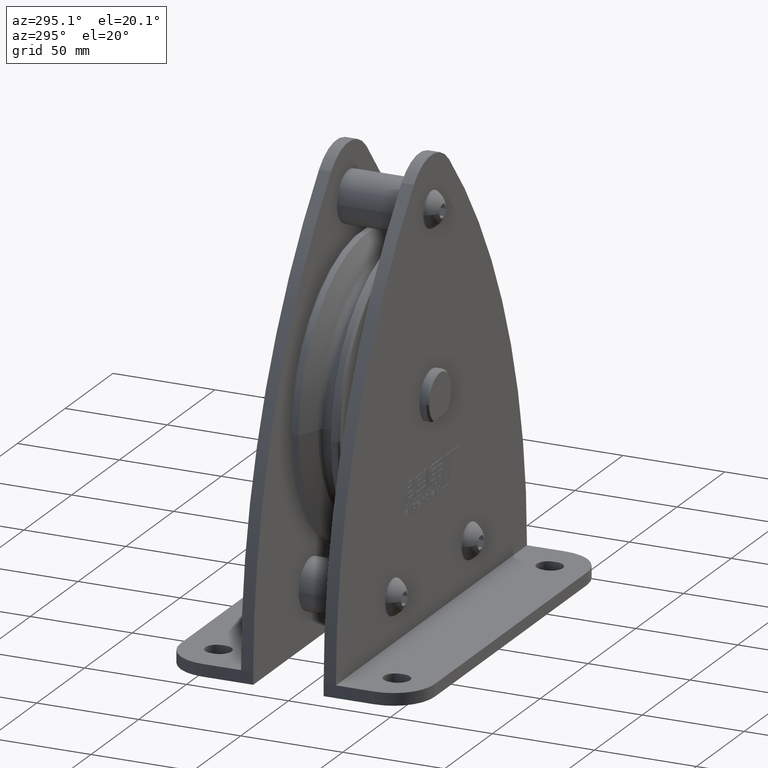
[diagram: clean part render]
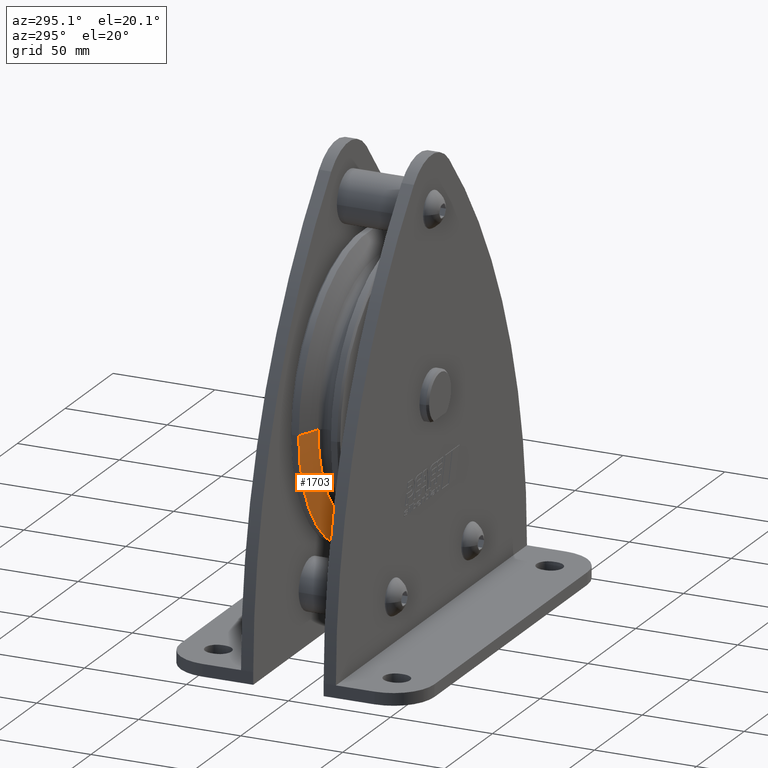
[diagram: same view with one face highlighted and labeled with its STEP entity id]
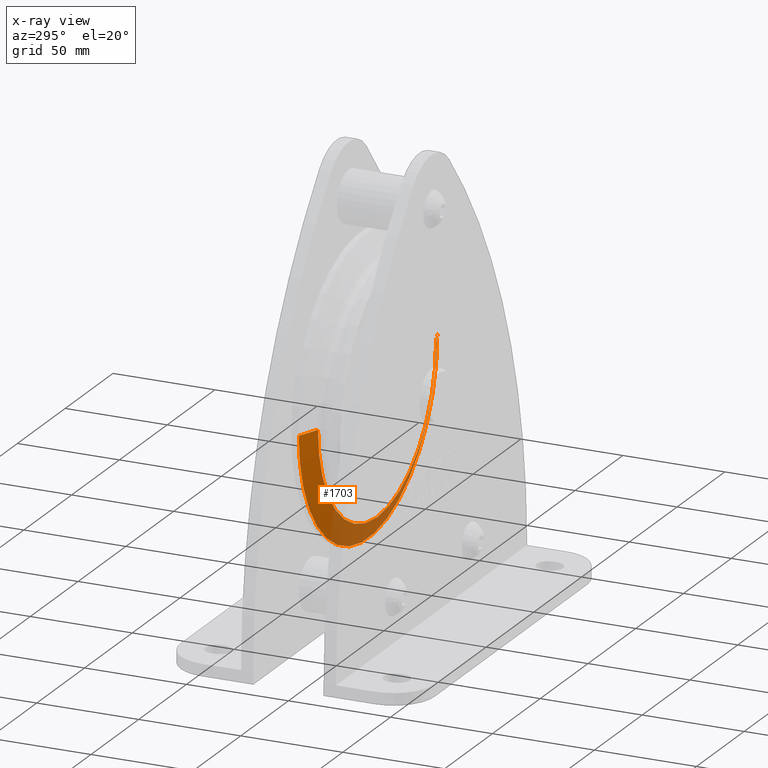
[diagram: x-ray of the same camera — body ghosted, the highlighted face saturated]
A machine part, auxiliary view. The second image highlights one B-rep face of the part: STEP entity #1703.
The next image is the same camera in x-ray: the body ghosted, the highlighted face saturated — about 41% of this face is hidden behind the body in this view.
In plain terms, the highlighted conical surface has half-angle 67.5 deg.
Its self-contained STEP definition (entity closure, byte-faithful):
#1703=ADVANCED_FACE('',(#3615),#3616,.T.);
#3615=FACE_OUTER_BOUND('',#5721,.T.);
#3616=CONICAL_SURFACE('',#5722,67.1420355,1.17809721524448);
#5721=EDGE_LOOP('',(#11158,#11159,#11160,#11161));
#5722=AXIS2_PLACEMENT_3D('',#11162,#11163,#11164);
#11158=ORIENTED_EDGE('',*,*,#12722,.T.);
#11159=ORIENTED_EDGE('',*,*,#12719,.F.);
#11160=ORIENTED_EDGE('',*,*,#12724,.T.);
#11161=ORIENTED_EDGE('',*,*,#14550,.T.);
#11162=CARTESIAN_POINT('',(0.0,5.63769575,0.0));
#11163=DIRECTION('',(-0.0,1.0,-0.0));
#11164=DIRECTION('',(1.0,0.0,0.0));
#12719=EDGE_CURVE('',#15328,#15330,#15331,.T.);
#12722=EDGE_CURVE('',#15334,#15330,#15335,.T.);
#12724=EDGE_CURVE('',#15328,#15336,#15338,.T.);
#14550=EDGE_CURVE('',#15336,#15334,#18042,.T.);
#15328=VERTEX_POINT('',#19782);
#15330=VERTEX_POINT('',#19784);
#15331=CIRCLE('',#19785,61.784071);
#15334=VERTEX_POINT('',#19788);
#15335=LINE('',#19789,#19790);
#15336=VERTEX_POINT('',#19791);
#15338=LINE('',#19793,#19794);
#18042=CIRCLE('',#25732,72.5);
#19782=CARTESIAN_POINT('',(-61.784071,3.418354,7.56636647884428E-015));
#19784=CARTESIAN_POINT('',(61.784071,3.418354,0.0));
#19785=AXIS2_PLACEMENT_3D('',#26849,#26850,#26851);
#19788=CARTESIAN_POINT('',(72.5,7.8570375,0.0));
#19789=CARTESIAN_POINT('',(67.1420355,5.63769575,-8.22252788633129E-015));
#19790=VECTOR('',#26855,1.0);
#19791=CARTESIAN_POINT('',(-72.5,7.8570375,8.87868929381831E-015));
#19793=CARTESIAN_POINT('',(-67.1420355,5.63769575,8.22252788633129E-015));
#19794=VECTOR('',#26859,1.0);
#25732=AXIS2_PLACEMENT_3D('',#28882,#28883,#28884);
#26849=CARTESIAN_POINT('',(0.0,3.418354,0.0));
#26850=DIRECTION('',(0.0,-1.0,0.0));
#26851=DIRECTION('',(1.0,0.0,0.0));
#26855=DIRECTION('',(-0.923879521087538,-0.382683459944458,1.13142609829764E-016));
#26859=DIRECTION('',(-0.923879521087538,0.382683459944458,1.13142609829764E-016));
#28882=CARTESIAN_POINT('',(0.0,7.8570375,0.0));
#28883=DIRECTION('',(0.0,-1.0,0.0));
#28884=DIRECTION('',(1.0,0.0,0.0));